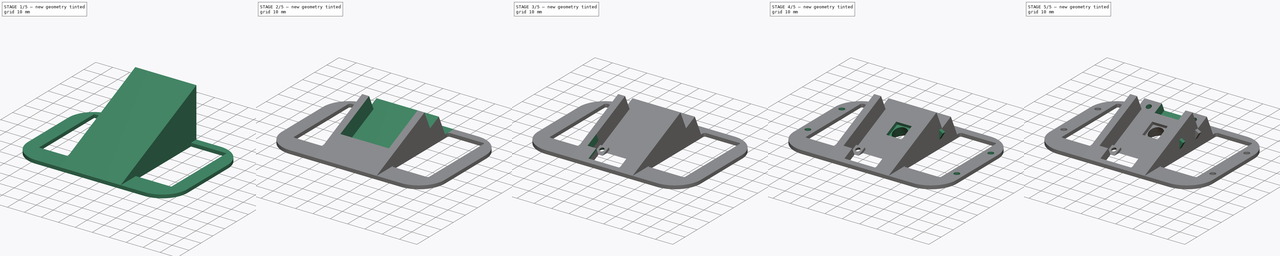
[diagram: build sequence overview — one tinted view per stage of 5, left to right]
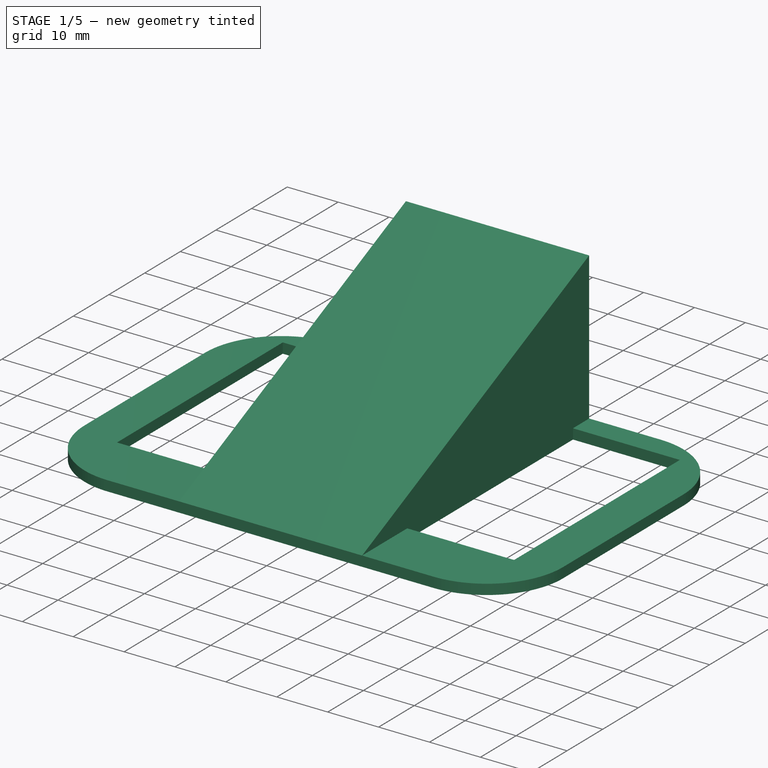
[diagram: stage 1 of 5 — iso view after this stage's code; geometry added in this stage tinted green]
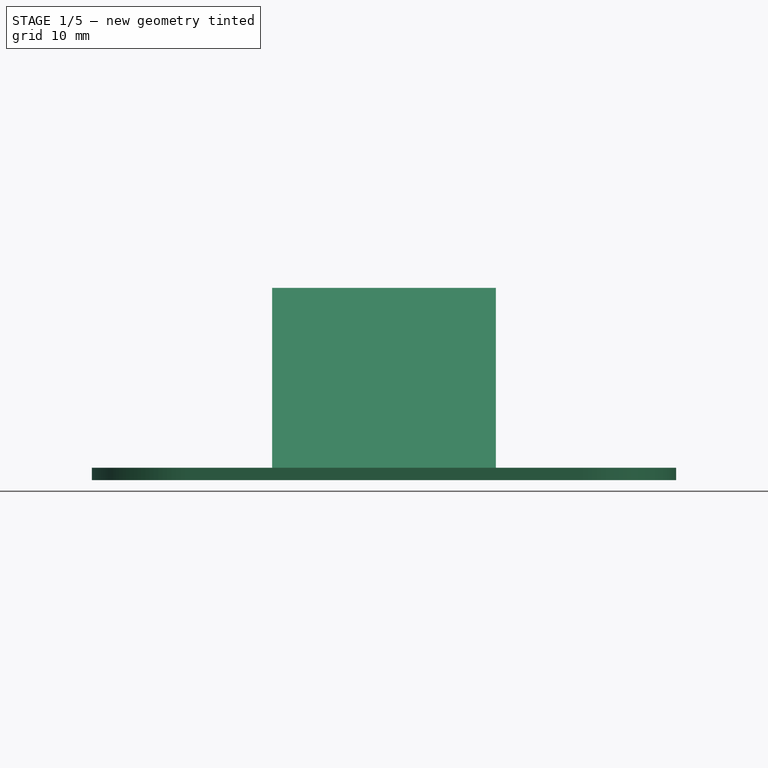
[diagram: stage 1 of 5 — front view after this stage's code; geometry added in this stage tinted green]
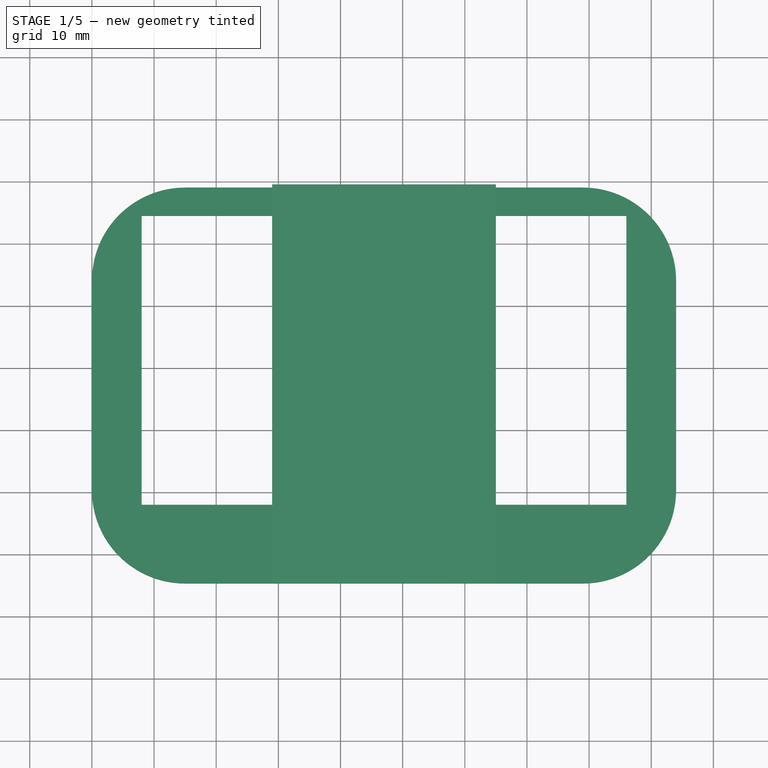
[diagram: stage 1 of 5 — top view after this stage's code; geometry added in this stage tinted green]
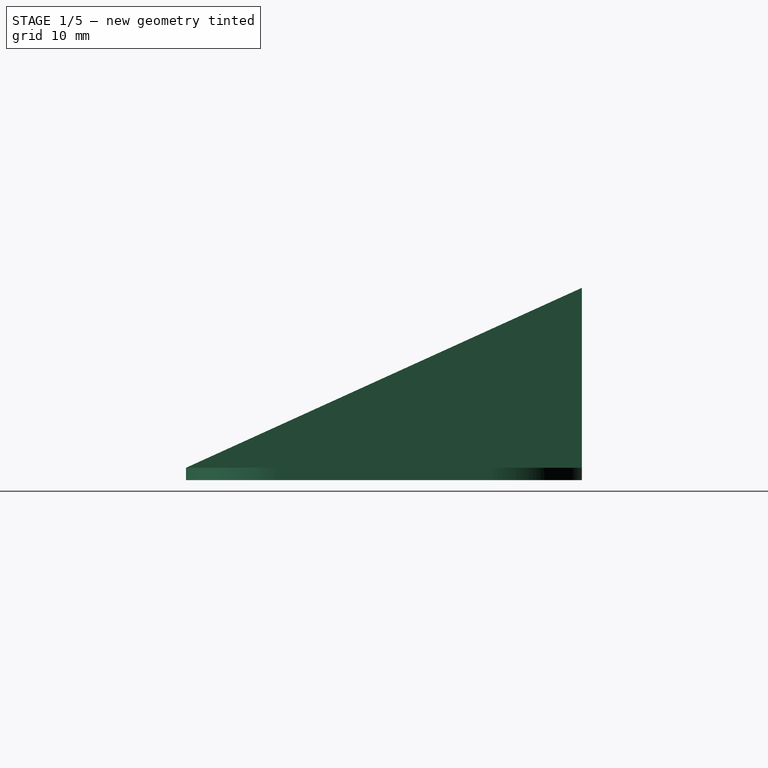
[diagram: stage 1 of 5 — right view after this stage's code; geometry added in this stage tinted green]
FCSTD DOCUMENT  (FreeCAD 0.18R4 (GitTag))
Label: cameramount_esp32_cam
License: CreativeCommons Attribution-NonCommercial
LicenseURL: http://creativecommons.org/licenses/by-nc/4.0/
objects: Sketcher::SketchObject×17, PartDesign::Pocket×10, PartDesign::Pad×4, PartDesign::SubtractiveLoft×2, PartDesign::Fillet×1, PartDesign::Body×1, App::Part×1
note: 51 computed .brp shape members not serialized (recipe doc carries the construction recipe); baked Part::Feature solids carry a one-line shape summary decoded from their .brp

FEATURE [Sketcher::SketchObject] Sketch331
  AttachmentOffset = pos=(0,0,42) rot=(0,0,1;0rad)
  MapMode = 5
  Placement = pos=(0,0,42) rot=(0,0,1;0rad)
  Support = -> [XY_Plane127]
  sketch-geometry (8):
    g0: ArcOfCircle CenterX=25 CenterY=0.35 CenterZ=0 NormalX=0 NormalY=0 NormalZ=1 AngleXU=0 Radius=15 StartAngle=3.14159 EndAngle=4.71239
    g1: LineSegment StartX=25 StartY=-14.65 StartZ=0 EndX=89 EndY=-14.65 EndZ=0
    g2: ArcOfCircle CenterX=89 CenterY=0.35 CenterZ=0 NormalX=0 NormalY=0 NormalZ=1 AngleXU=0 Radius=15 StartAngle=4.71239 EndAngle=6.28319
    g3: ArcOfCircle CenterX=25 CenterY=34.05 CenterZ=0 NormalX=0 NormalY=0 NormalZ=1 AngleXU=0 Radius=15 StartAngle=1.5708 EndAngle=3.14159
    g4: LineSegment StartX=25 StartY=49.05 StartZ=0 EndX=89 EndY=49.05 EndZ=0
    g5: LineSegment StartX=10 StartY=34.05 StartZ=0 EndX=10 EndY=0.35 EndZ=0
    g6: ArcOfCircle CenterX=89 CenterY=34.05 CenterZ=0 NormalX=0 NormalY=0 NormalZ=1 AngleXU=0 Radius=15 StartAngle=0 EndAngle=1.5708
    g7: LineSegment StartX=104 StartY=34.05 StartZ=0 EndX=104 EndY=0.35 EndZ=0
  constraints (21):
    c: Horizontal(g1)
    c: Tangent(g1,g0) = -1.5708
    c: Angle(g0) = 1.5708
    c: DistanceX(g-1,g0) = 25
    c: DistanceX(g1,g1) = 64
    c: Equal(g0,g2)
    c: DistanceY(g0,g-1) = 14.65
    c: Horizontal(g4)
    c: Vertical(g0,g3)
    c: Vertical(g4,g1)
    c: Tangent(g2,g1) = -1.5708
    c: Tangent(g4,g3) = 1.5708
    c: Vertical(g5)
    c: Coincident(g5,g0)
    c: Tangent(g5,g3) = -1.5708
    c: DistanceY(g0,g3) = 63.7
    c: Vertical(g7)
    c: Tangent(g7,g2) = 1.5708
    c: Tangent(g7,g6) = 1.5708
    c: Tangent(g6,g4) = 1.5708
    c: DistanceX(g-1,g0) = 10
FEATURE [Sketcher::SketchObject] Sketch332
  AttachmentOffset = pos=(0,0,57) rot=(0,0,1;0rad)
  MapMode = 5
  Placement = pos=(57,-1.27e-14,1.27e-14) rot=(0.57735,0.57735,0.57735;2.0944rad)
  Support = -> [YZ_Plane127]
  sketch-geometry (3):
    g0: LineSegment StartX=-14.65 StartY=44 StartZ=0 EndX=49.05 EndY=44 EndZ=0
    g1: LineSegment StartX=49.05 StartY=44 StartZ=0 EndX=49.05 EndY=72.9546 EndZ=0
    g2: LineSegment StartX=49.05 StartY=72.9546 StartZ=0 EndX=-14.65 EndY=44 EndZ=0
  constraints (9):
    c: Horizontal(g0)
    c: Coincident(g0,g1)
    c: Vertical(g1)
    c: Coincident(g1,g2)
    c: Coincident(g2,g0)
    c: Angle(g0,g2) = 0.426628
    c: DistanceY(g-1,g0) = 44
    c: DistanceX(g0,g-1) = 14.65
    c: DistanceX(g0,g0) = 63.7
FEATURE [PartDesign::Pad] Pad127  label="Base"
  Length = 2
  Length2 = 100
  Profile = -> Sketch331
  Type = 0
FEATURE [PartDesign::Pad] Pad128  label="Camerawedge"
  BaseFeature = -> Pad127
  Length = 18
  Length2 = 18
  Profile = -> Sketch332
  Type = 4
FEATURE [Sketcher::SketchObject] Sketch333
  MapMode = 5
  Placement = pos=(0,0,44) rot=(0,0,1;0rad)
  Support = -> [Pad128]
  sketch-geometry (8):
    g0: LineSegment StartX=75 StartY=-2 StartZ=0 EndX=96 EndY=-2 EndZ=0
    g1: LineSegment StartX=96 StartY=-2 StartZ=0 EndX=96 EndY=44.5 EndZ=0
    g2: LineSegment StartX=96 StartY=44.5 StartZ=0 EndX=75 EndY=44.5 EndZ=0
    g3: LineSegment StartX=75 StartY=44.5 StartZ=0 EndX=75 EndY=-2 EndZ=0
    g4: LineSegment StartX=18 StartY=-2 StartZ=0 EndX=39 EndY=-2 EndZ=0
    g5: LineSegment StartX=39 StartY=-2 StartZ=0 EndX=39 EndY=44.5 EndZ=0
    g6: LineSegment StartX=39 StartY=44.5 StartZ=0 EndX=18 EndY=44.5 EndZ=0
    g7: LineSegment StartX=18 StartY=44.5 StartZ=0 EndX=18 EndY=-2 EndZ=0
  constraints (24):
    c: Coincident(g0,g1)
    c: Coincident(g1,g2)
    c: Coincident(g2,g3)
    c: Coincident(g3,g0)
    c: Horizontal(g0)
    c: Horizontal(g2)
    c: Vertical(g1)
    c: Vertical(g3)
    c: Coincident(g4,g5)
    c: Coincident(g5,g6)
    c: Coincident(g6,g7)
    c: Coincident(g7,g4)
    c: Horizontal(g4)
    c: Horizontal(g6)
    c: Vertical(g5)
    c: Vertical(g7)
    c: DistanceX(g6,g6) = 21
    c: DistanceX(g5,g2) = 36
    c: DistanceX(g-1,g5) = 39
    c: DistanceY(g7,g7) = 46.5
    c: Horizontal(g5,g2)
    c: Equal(g1,g7)
    c: Equal(g2,g6)
    c: DistanceY(g4,g-1) = 2
FEATURE [PartDesign::Pocket] Pocket160  label="Ultrasonic Sensor Holes"
  BaseFeature = -> Pad128
  Length = 2
  Length2 = 100
  Profile = -> Sketch333
  Type = 0
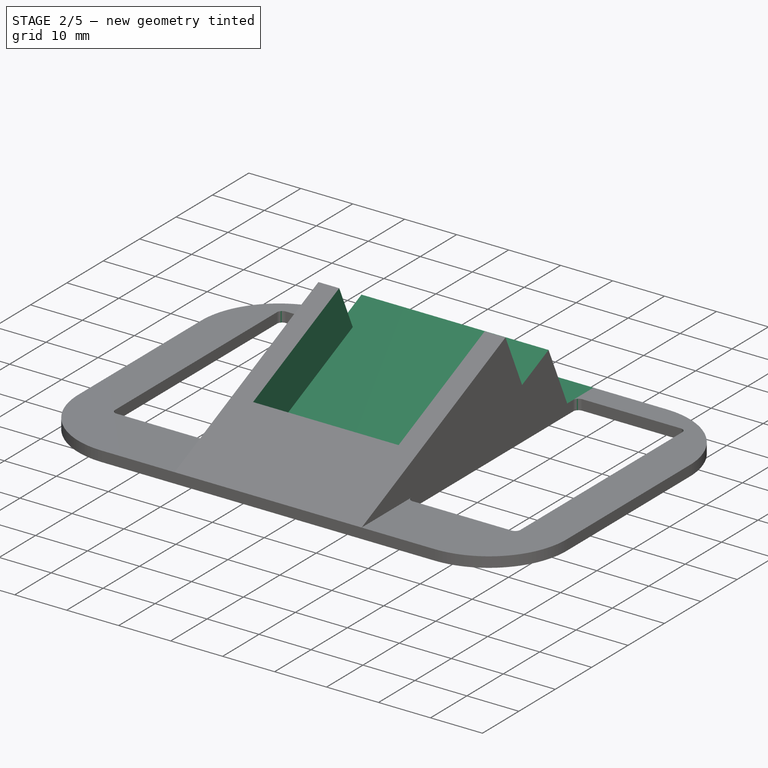
[diagram: stage 2 of 5 — iso view after this stage's code; geometry added in this stage tinted green]
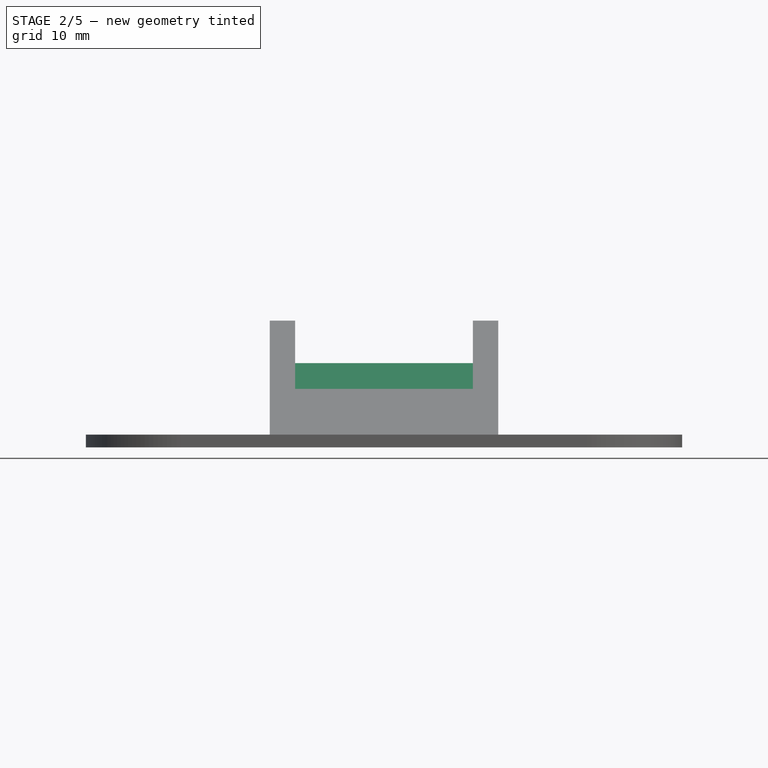
[diagram: stage 2 of 5 — front view after this stage's code; geometry added in this stage tinted green]
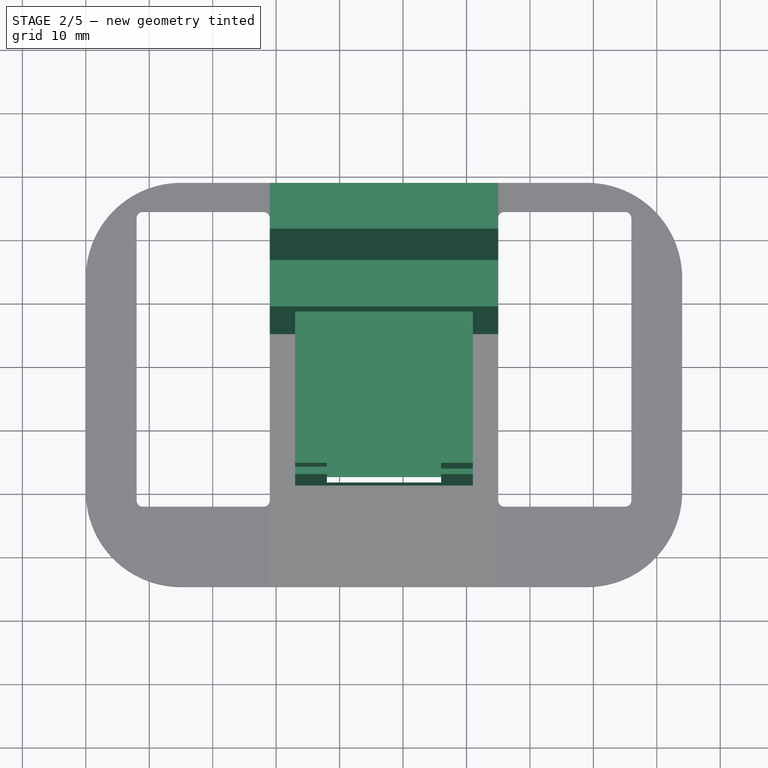
[diagram: stage 2 of 5 — top view after this stage's code; geometry added in this stage tinted green]
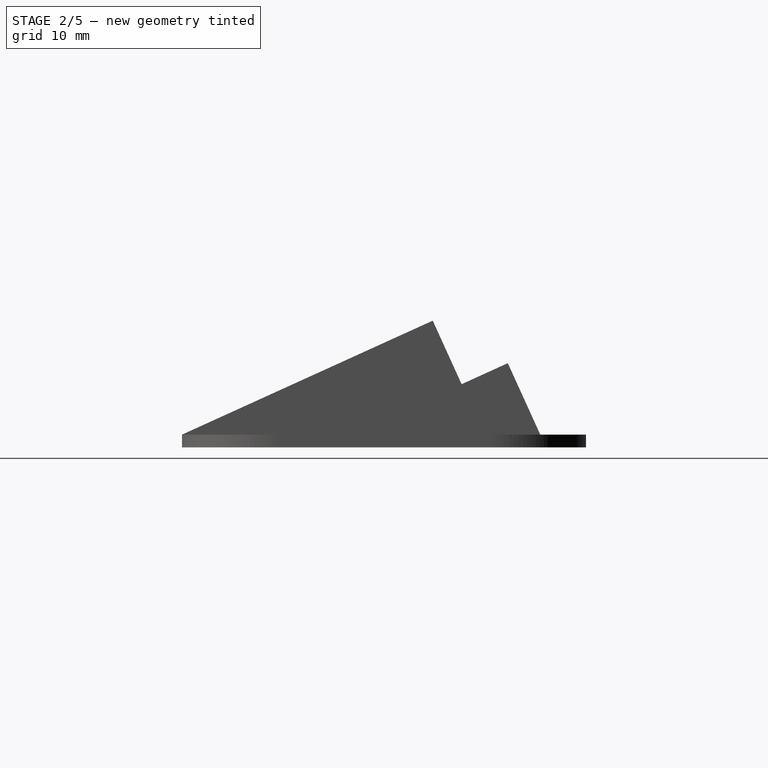
[diagram: stage 2 of 5 — right view after this stage's code; geometry added in this stage tinted green]
FEATURE [PartDesign::Fillet] Fillet052  label="Smooth Ultrasonic Sensor Holes"
  Base = -> Pocket160 [Edge58,Edge57,Edge55,Edge56,Edge50,Edge51,Edge52,Edge54]
  BaseFeature = -> Pocket160
  Radius = 1
FEATURE [Sketcher::SketchObject] Sketch334
  ExternalGeometry = -> [Fillet052]
  MapMode = 5
  Placement = pos=(75,-1.65e-14,1.87e-14) rot=(0.57735,0.57735,0.57735;2.0944rad)
  Support = -> [Fillet052]
  sketch-geometry (8):
    g0: LineSegment StartX=41.8377 StartY=44 StartZ=0 EndX=49.05 EndY=44 EndZ=0
    g1: LineSegment StartX=49.05 StartY=44 StartZ=0 EndX=49.05 EndY=72.9546 EndZ=0
    g2: LineSegment StartX=24.8822 StartY=61.9692 StartZ=0 EndX=29.434 EndY=51.9552 EndZ=0
    g3: LineSegment StartX=24.8822 StartY=61.9692 StartZ=0 EndX=49.05 EndY=72.9546 EndZ=0
    g4: LineSegment StartX=29.434 StartY=51.9552 StartZ=0 EndX=36.7169 EndY=55.2656 EndZ=0
    g5: LineSegment StartX=36.7169 StartY=55.2656 StartZ=0 EndX=41.8377 EndY=44 EndZ=0
    g6: LineSegment [constr] StartX=29.434 StartY=51.9552 StartZ=0 EndX=33.05 EndY=44 EndZ=0
    g7: LineSegment [constr] StartX=33.05 StartY=44 StartZ=0 EndX=41.8377 EndY=44 EndZ=0
  constraints (20):
    c: Horizontal(g0)
    c: Coincident(g0,g1)
    c: Coincident(g1,g-3)
    c: Coincident(g0,g-4)
    c: PointOnObject(g2,g-3)
    c: Coincident(g3,g2)
    c: Perpendicular(g3,g2)
    c: Coincident(g1,g3)
    c: DistanceX(g6,g0) = 16
    c: Coincident(g4,g5)
    c: Parallel(g5,g2)
    c: Perpendicular(g5,g4)
    c: Coincident(g2,g4)
    c: Distance(g4) = 8
    c: Distance(g2) = 11
    c: Tangent(g6,g2) = -1.5708
    c: Coincident(g0,g5)
    c: Coincident(g7,g6)
    c: Coincident(g7,g0)
    c: Horizontal(g7)
FEATURE [PartDesign::Pocket] Pocket161  label="Shorten Wedge"
  BaseFeature = -> Fillet052
  Length = 36
  Length2 = 100
  Profile = -> Sketch334
  Type = 0
FEATURE [Sketcher::SketchObject] Sketch335
  ExternalGeometry = -> [Pocket161]
  MapMode = 5
  Placement = pos=(5.3e-15,43.9661,19.9846) rot=(0,0.541385,0.840775;3.14159rad)
  Support = -> [Pocket161]
  sketch-geometry (5):
    g0: LineSegment StartX=-71 StartY=37.1183 StartZ=0 EndX=-43 EndY=37.1183 EndZ=0
    g1: LineSegment StartX=-43 StartY=37.1183 StartZ=0 EndX=-43 EndY=46.1183 EndZ=0
    g2: LineSegment StartX=-43 StartY=46.1183 StartZ=0 EndX=-71 EndY=46.1183 EndZ=0
    g3: LineSegment StartX=-71 StartY=46.1183 StartZ=0 EndX=-71 EndY=37.1183 EndZ=0
    g4: GeomPoint X=-57 Y=46.1183 Z=0
  constraints (13):
    c: Coincident(g0,g1)
    c: Coincident(g1,g2)
    c: Coincident(g2,g3)
    c: Coincident(g3,g0)
    c: Horizontal(g0)
    c: Horizontal(g2)
    c: Vertical(g1)
    c: Vertical(g3)
    c: DistanceX(g2,g2) = 28
    c: DistanceY(g1,g1) = 9
    c: Symmetric(g2,g1,g4)
    c: Horizontal(g2,g-3)
    c: DistanceX(g4,g-1) = 57
FEATURE [PartDesign::Pocket] Pocket162  label="ESP32-CAM PCB Pocket"
  BaseFeature = -> Pocket161
  Length = 26
  Length2 = 100
  Profile = -> Sketch335
  Type = 0
FEATURE [Sketcher::SketchObject] Sketch336
  ExternalGeometry = -> [Pocket162]
  MapMode = 5
  Placement = pos=(2.7e-15,20.2966,9.22574) rot=(0,0.541385,0.840775;3.14159rad)
  Support = -> [Pocket162]
  sketch-geometry (12):
    g0: LineSegment StartX=-71 StartY=41.6183 StartZ=0 EndX=-71 EndY=39.4183 EndZ=0
    g1: LineSegment StartX=-71 StartY=39.4183 StartZ=0 EndX=-66 EndY=39.4183 EndZ=0
    g2: LineSegment StartX=-66 StartY=39.4183 StartZ=0 EndX=-66 EndY=37.1183 EndZ=0
    g3: LineSegment StartX=-66 StartY=37.1183 StartZ=0 EndX=-48 EndY=37.1183 EndZ=0
    g4: LineSegment StartX=-48 StartY=37.1183 StartZ=0 EndX=-48 EndY=38.6183 EndZ=0
    g5: LineSegment StartX=-48 StartY=38.6183 StartZ=0 EndX=-43 EndY=38.6183 EndZ=0
    g6: LineSegment StartX=-43 StartY=38.6183 StartZ=0 EndX=-43 EndY=41.6183 EndZ=0
    g7: LineSegment StartX=-43 StartY=41.6183 StartZ=0 EndX=-48 EndY=41.6183 EndZ=0
    g8: LineSegment StartX=-48 StartY=41.6183 StartZ=0 EndX=-48 EndY=44.9183 EndZ=0
    g9: LineSegment StartX=-48 StartY=44.9183 StartZ=0 EndX=-66 EndY=44.9183 EndZ=0
    g10: LineSegment StartX=-66 StartY=44.9183 StartZ=0 EndX=-66 EndY=41.6183 EndZ=0
    g11: LineSegment StartX=-66 StartY=41.6183 StartZ=0 EndX=-71 EndY=41.6183 EndZ=0
  constraints (33):
    c: Vertical(g0)
    c: Coincident(g0,g1)
    c: Horizontal(g1)
    c: Coincident(g1,g2)
    c: Vertical(g2)
    c: Coincident(g2,g3)
    c: Horizontal(g3)
    c: Coincident(g3,g4)
    c: Vertical(g4)
    c: Coincident(g4,g5)
    c: Horizontal(g5)
    c: Coincident(g5,g6)
    c: Vertical(g6)
    c: Coincident(g6,g7)
    c: Horizontal(g7)
    c: Coincident(g7,g8)
    c: Vertical(g8)
    c: Coincident(g8,g9)
    c: Horizontal(g9)
    c: Coincident(g9,g10)
    c: Vertical(g10)
    c: Coincident(g10,g11)
    c: Coincident(g11,g0)
    c: Horizontal(g11)
    c: Vertical(g1,g10)
    c: Horizontal(g7,g10)
    c: Equal(g11,g7)
    c: Equal(g5,g1)
    c: DistanceY(g4,g4) = 1.5
    c: DistanceY(g6,g6) = 3
    c: DistanceY(g2,g2) = 2.3
    c: DistanceX(g3,g3) = 18
    c: DistanceY(g8,g8) = 3.3
FEATURE [PartDesign::Pocket] Pocket163  label="ESP32-CAM PCB Pocket longer"
  BaseFeature = -> Pocket162
  Length = 15
  Length2 = 100
  Profile = -> Sketch336
  Type = 0
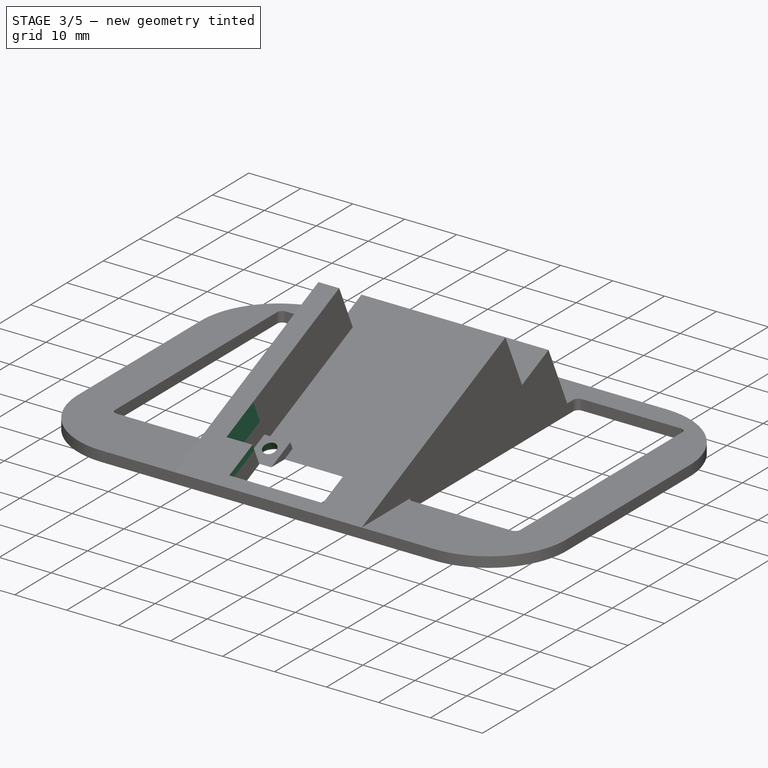
[diagram: stage 3 of 5 — iso view after this stage's code; geometry added in this stage tinted green]
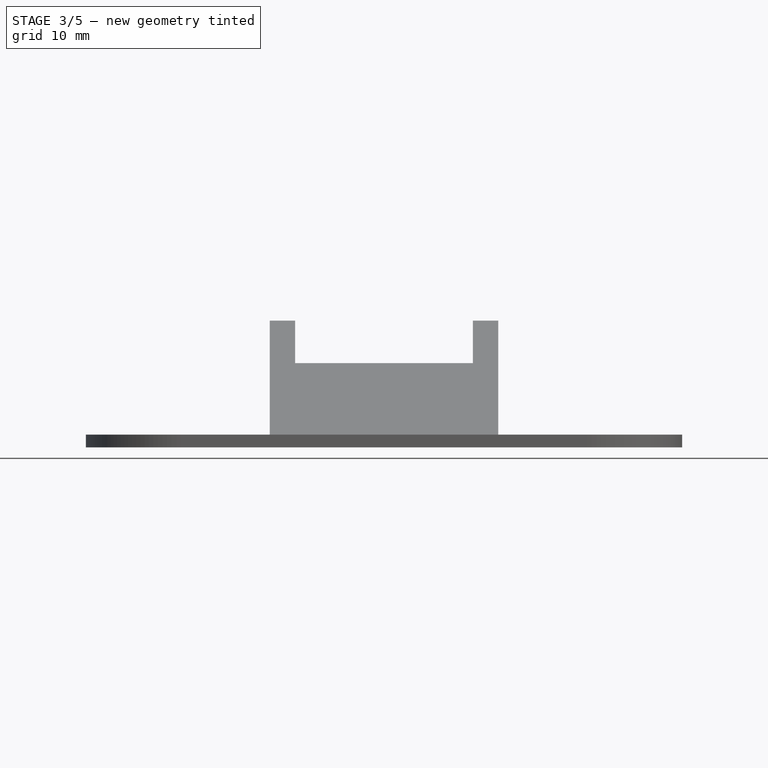
[diagram: stage 3 of 5 — front view after this stage's code; geometry added in this stage tinted green]
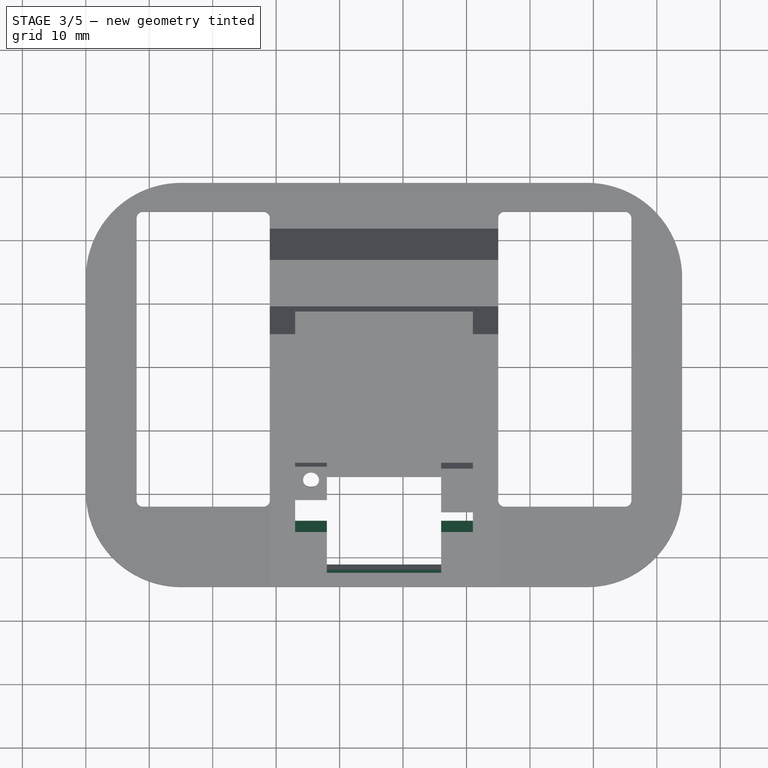
[diagram: stage 3 of 5 — top view after this stage's code; geometry added in this stage tinted green]
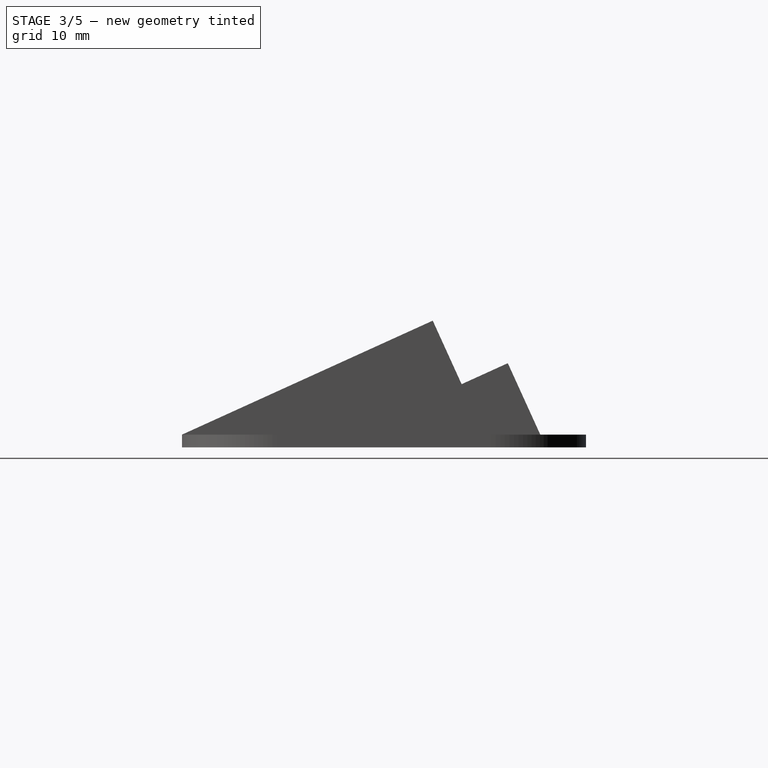
[diagram: stage 3 of 5 — right view after this stage's code; geometry added in this stage tinted green]
FEATURE [PartDesign::Pocket] Pocket164  label="ESP32-CAM SoC Pocket"
  BaseFeature = -> Pocket163
  Length = 8
  Length2 = 100
  Profile = -> Pocket163 [Face47]
  Type = 0
FEATURE [PartDesign::Pocket] Pocket165  label="ESP32-CAM Antenna Pocket"
  BaseFeature = -> Pocket164
  Length = 5
  Length2 = 100
  Profile = -> Pocket164 [Face50]
  Type = 0
FEATURE [Sketcher::SketchObject] Sketch337
  MapMode = 5
  Placement = pos=(0,-15.9804,35.1568) rot=(1,0,0;0.426628rad)
  Support = -> [Pocket165]
  sketch-geometry (1):
    g0: Circle CenterX=45.5 CenterY=20 CenterZ=0 NormalX=0 NormalY=0 NormalZ=1 AngleXU=0 Radius=1.25
  constraints (3):
    c: Radius(g0) = 1.25
    c: DistanceX(g-1,g0) = 45.5
    c: DistanceY(g-1,g0) = 20
FEATURE [Sketcher::SketchObject] Sketch338
  AttachmentOffset = pos=(0,0,-10.6) rot=(0,0,1;0rad)
  MapMode = 5
  Placement = pos=(0,-11.5941,25.5069) rot=(1,0,0;0.426628rad)
  Support = -> [Pocket165]
  sketch-geometry (1):
    g0: Circle CenterX=45.5 CenterY=20 CenterZ=0 NormalX=0 NormalY=0 NormalZ=1 AngleXU=0 Radius=5
  constraints (3):
    c: DistanceX(g-1,g0) = 45.5
    c: DistanceY(g-1,g0) = 20
    c: Radius(g0) = 5
FEATURE [PartDesign::SubtractiveLoft] SubtractiveLoft002  label="Flashlight Loft"
  BaseFeature = -> Pocket165
  Closed = false
  Profile = -> Sketch338
  Ruled = false
  Sections = -> [Sketch337]
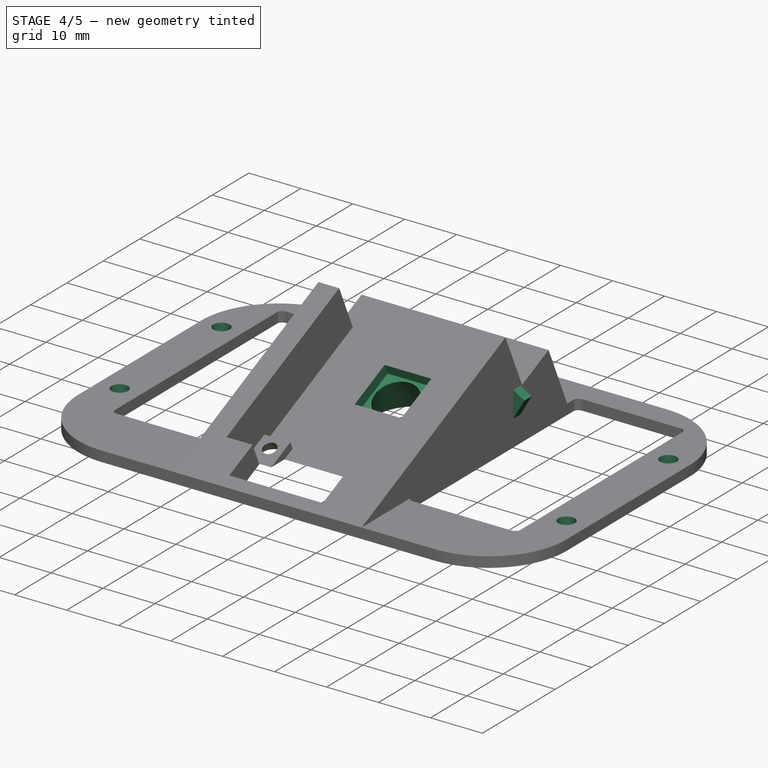
[diagram: stage 4 of 5 — iso view after this stage's code; geometry added in this stage tinted green]
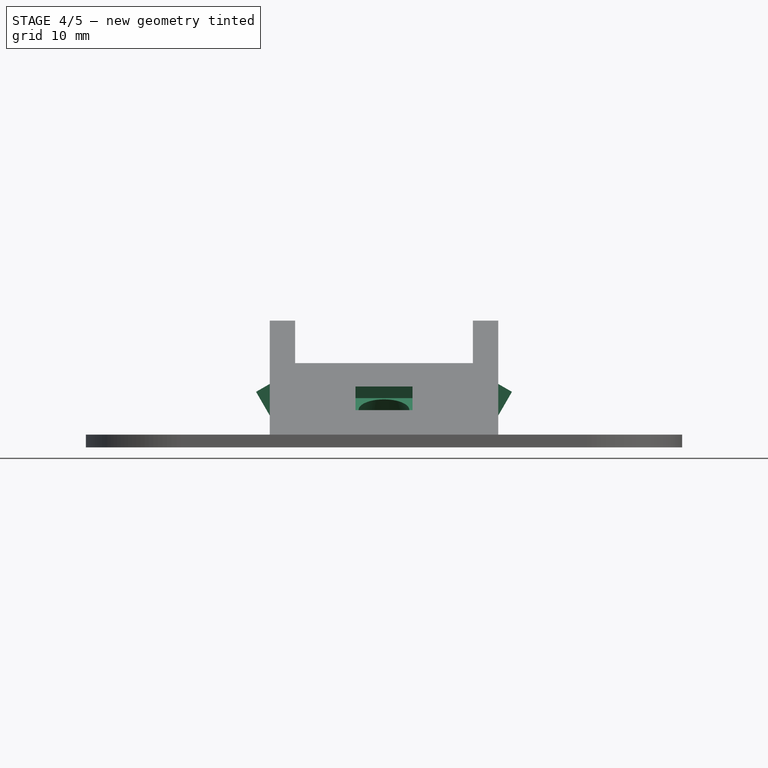
[diagram: stage 4 of 5 — front view after this stage's code; geometry added in this stage tinted green]
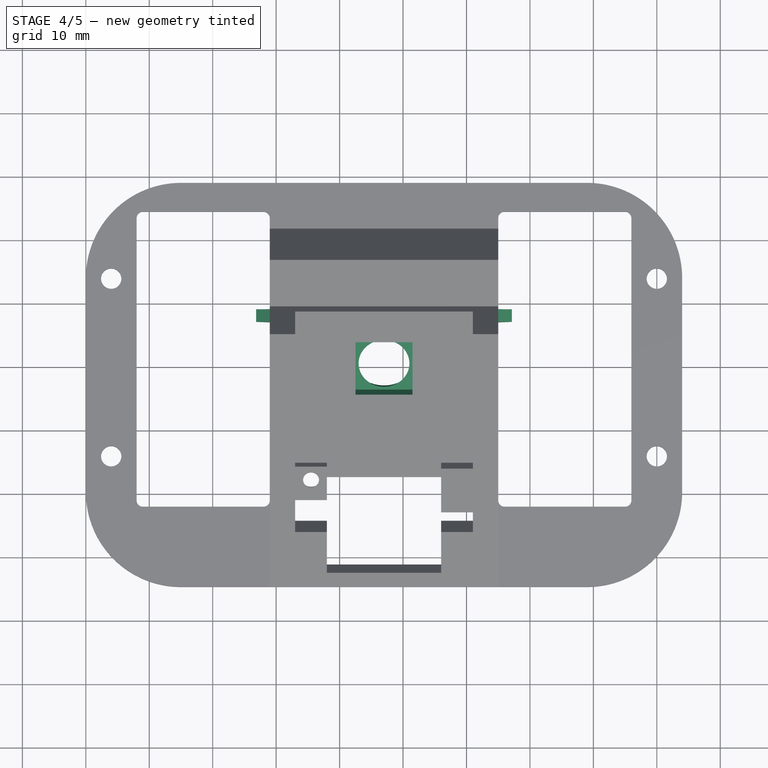
[diagram: stage 4 of 5 — top view after this stage's code; geometry added in this stage tinted green]
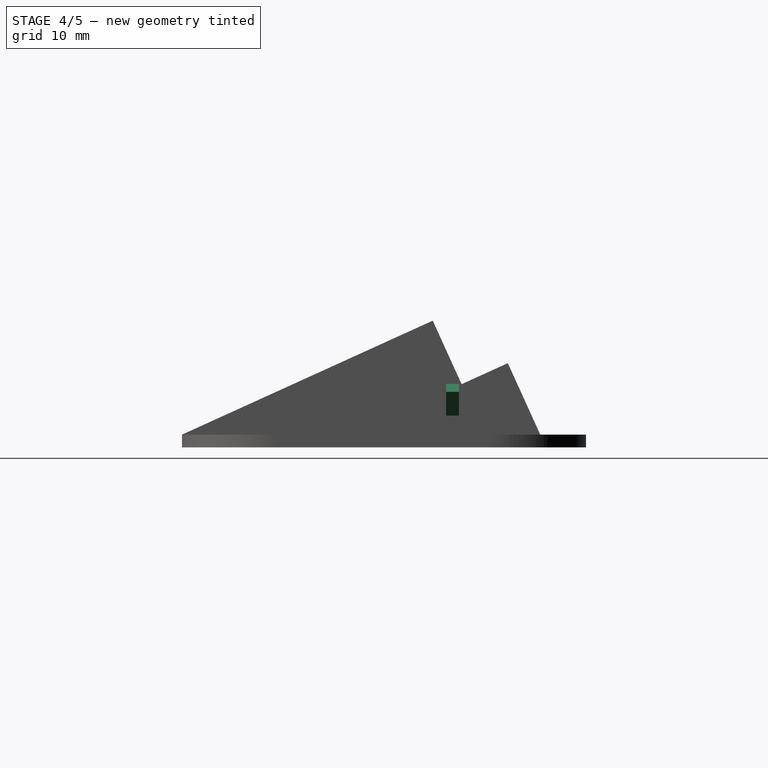
[diagram: stage 4 of 5 — right view after this stage's code; geometry added in this stage tinted green]
FEATURE [Sketcher::SketchObject] Sketch339
  MapMode = 5
  Placement = pos=(0,-15.3597,33.7913) rot=(1,0,0;0.426628rad)
  Support = -> [SubtractiveLoft002]
  sketch-geometry (5):
    g0: LineSegment StartX=52.5 StartY=43 StartZ=0 EndX=61.5 EndY=43 EndZ=0
    g1: LineSegment StartX=61.5 StartY=43 StartZ=0 EndX=61.5 EndY=34 EndZ=0
    g2: LineSegment StartX=61.5 StartY=34 StartZ=0 EndX=52.5 EndY=34 EndZ=0
    g3: LineSegment StartX=52.5 StartY=34 StartZ=0 EndX=52.5 EndY=43 EndZ=0
    g4: Circle [constr] CenterX=57 CenterY=38.5 CenterZ=0 NormalX=0 NormalY=0 NormalZ=1 AngleXU=0 Radius=6.36396
  constraints (15):
    c: Coincident(g0,g1)
    c: Coincident(g1,g2)
    c: Coincident(g2,g3)
    c: Coincident(g3,g0)
    c: Horizontal(g0)
    c: Horizontal(g2)
    c: Vertical(g1)
    c: Vertical(g3)
    c: Equal(g3,g0)
    c: DistanceX(g0,g0) = 9
    c: PointOnObject(g0,g4)
    c: PointOnObject(g2,g4)
    c: PointOnObject(g0,g4)
    c: DistanceX(g-1,g4) = 57
    c: DistanceY(g-1,g4) = 38.5
FEATURE [PartDesign::Pocket] Pocket166  label="Camerasensor Pocket"
  BaseFeature = -> SubtractiveLoft002
  Length = 2
  Length2 = 100
  Profile = -> Sketch339
  Type = 0
FEATURE [Sketcher::SketchObject] Sketch341
  AttachmentOffset = pos=(0,0,-21.1) rot=(0,0,1;0rad)
  MapMode = 5
  Placement = pos=(3e-16,-5.80084,12.7618) rot=(1,0,0;0.426628rad)
  Support = -> [Pocket166]
  sketch-geometry (1):
    g0: Circle CenterX=57 CenterY=38.5 CenterZ=0 NormalX=0 NormalY=0 NormalZ=1 AngleXU=0 Radius=12
  constraints (3):
    c: Radius(g0) = 12
    c: DistanceX(g-1,g0) = 57
    c: DistanceY(g-1,g0) = 38.5
FEATURE [Sketcher::SketchObject] Sketch340
  MapMode = 5
  Placement = pos=(7e-16,-14.5321,31.9705) rot=(1,0,0;0.426628rad)
  Support = -> [Pocket166]
  sketch-geometry (1):
    g0: Circle CenterX=57 CenterY=38.5 CenterZ=0 NormalX=0 NormalY=0 NormalZ=1 AngleXU=0 Radius=4
  constraints (3):
    c: Radius(g0) = 4
    c: DistanceX(g-1,g0) = 57
    c: DistanceY(g-1,g0) = 38.5
FEATURE [PartDesign::SubtractiveLoft] SubtractiveLoft003  label="Camerasensor Loft"
  BaseFeature = -> Pocket166
  Closed = false
  Profile = -> Sketch341
  Ruled = false
  Sections = -> [Sketch340]
FEATURE [Sketcher::SketchObject] Sketch343  label="FOV"
  AttachmentOffset = pos=(0,0,-18) rot=(0,0,1;0rad)
  MapMode = 5
  Placement = pos=(57,-1.26e-14,1.37e-14) rot=(-0.57735,0.57735,0.57735;4.18879rad)
  Support = -> [SubtractiveLoft003]
  sketch-geometry (5):
    g0: ArcOfCircle CenterX=-24 CenterY=46 CenterZ=0 NormalX=0 NormalY=0 NormalZ=1 AngleXU=0 Radius=322.897 StartAngle=3.7186 EndAngle=4.85306
    g1: LineSegment StartX=-24 StartY=46 StartZ=0 EndX=-294.62 EndY=-130.146 EndZ=0
    g2: LineSegment StartX=21.2734 StartY=-273.707 StartZ=0 EndX=-24 EndY=46 EndZ=0
    g3: LineSegment [constr] StartX=-50.775 StartY=28.5722 StartZ=0 EndX=-19.5207 EndY=14.3683 EndZ=0
    g4: LineSegment [constr] StartX=-35.1478 StartY=21.4702 StartZ=0 EndX=-24 EndY=46 EndZ=0
  constraints (13):
    c: Coincident(g1,g0)
    c: Coincident(g1,g0)
    c: Coincident(g2,g0)
    c: Coincident(g2,g0)
    c: Angle(g1,g2) = 1.13446
    c: PointOnObject(g3,g2)
    c: PointOnObject(g3,g1)
    c: Coincident(g4,g0)
    c: Perpendicular(g3,g4)
    c: Symmetric(g3,g3,g4)
    c: Angle(g4) = 1.14424
    c: DistanceX(g0,g-1) = 24
    c: DistanceY(g-1,g0) = 46
FEATURE [Sketcher::SketchObject] Sketch
  MapMode = 5
  Placement = pos=(0,0,44) rot=(0,0,1;0rad)
  Support = -> [SubtractiveLoft003]
  sketch-geometry (4):
    g0: Circle CenterX=14 CenterY=33.95 CenterZ=0 NormalX=0 NormalY=0 NormalZ=1 AngleXU=0 Radius=1.6
    g1: Circle CenterX=100 CenterY=33.95 CenterZ=0 NormalX=0 NormalY=0 NormalZ=1 AngleXU=0 Radius=1.6
    g2: Circle CenterX=100 CenterY=5.95 CenterZ=0 NormalX=0 NormalY=0 NormalZ=1 AngleXU=0 Radius=1.6
    g3: Circle CenterX=14 CenterY=5.95 CenterZ=0 NormalX=0 NormalY=0 NormalZ=1 AngleXU=0 Radius=1.6
  constraints (12):
    c: Horizontal(g0,g1)
    c: Horizontal(g3,g2)
    c: Vertical(g3,g0)
    c: Vertical(g2,g1)
    c: DistanceX(g0,g1) = 86
    c: DistanceY(g2,g1) = 28
    c: Equal(g0,g1)
    c: Equal(g1,g2)
    c: Equal(g2,g3)
    c: Radius(g1) = 1.6
    c: DistanceX(g-1,g3) = 14
    c: DistanceY(g-1,g3) = 5.95
FEATURE [PartDesign::Pocket] Pocket  label="Mounting Screwholes"
  BaseFeature = -> SubtractiveLoft003
  Length = 5
  Length2 = 100
  Profile = -> Sketch
  Type = 0
FEATURE [Sketcher::SketchObject] Sketch344
  AttachmentOffset = pos=(0,0,-29) rot=(0,0,1;0rad)
  MapMode = 5
  Placement = pos=(0,29,6.4e-15) rot=(1,0,0;1.5708rad)
  Support = -> [XZ_Plane127]
  sketch-geometry (6):
    g0: LineSegment StartX=39 StartY=47 StartZ=0 EndX=39 EndY=52 EndZ=0
    g1: LineSegment StartX=39 StartY=52 StartZ=0 EndX=36.8349 EndY=50.75 EndZ=0
    g2: LineSegment StartX=36.8349 StartY=50.75 StartZ=0 EndX=39 EndY=47 EndZ=0
    g3: LineSegment StartX=75 StartY=52 StartZ=0 EndX=75 EndY=47 EndZ=0
    g4: LineSegment StartX=75 StartY=47 StartZ=0 EndX=77.1651 EndY=50.75 EndZ=0
    g5: LineSegment StartX=77.1651 StartY=50.75 StartZ=0 EndX=75 EndY=52 EndZ=0
  constraints (18):
    c: Vertical(g0)
    c: Coincident(g0,g1)
    c: Coincident(g1,g2)
    c: Coincident(g2,g0)
    c: Vertical(g3)
    c: Coincident(g3,g4)
    c: Coincident(g4,g5)
    c: Coincident(g5,g3)
    c: Horizontal(g0,g3)
    c: Equal(g0,g3)
    c: Equal(g5,g1)
    c: Equal(g2,g4)
    c: DistanceX(g0,g3) = 36
    c: DistanceY(g-1,g0) = 47
    c: DistanceX(g-1,g0) = 39
    c: DistanceY(g3,g3) = 5
    c: Angle(g3,g5) = 1.0472
    c: Perpendicular(g4,g5)
FEATURE [PartDesign::Pad] Pad  label="Ultrasonic Sensor Restrain #1"
  BaseFeature = -> Pocket
  Length = 2
  Length2 = 100
  Profile = -> Sketch344
  Type = 0
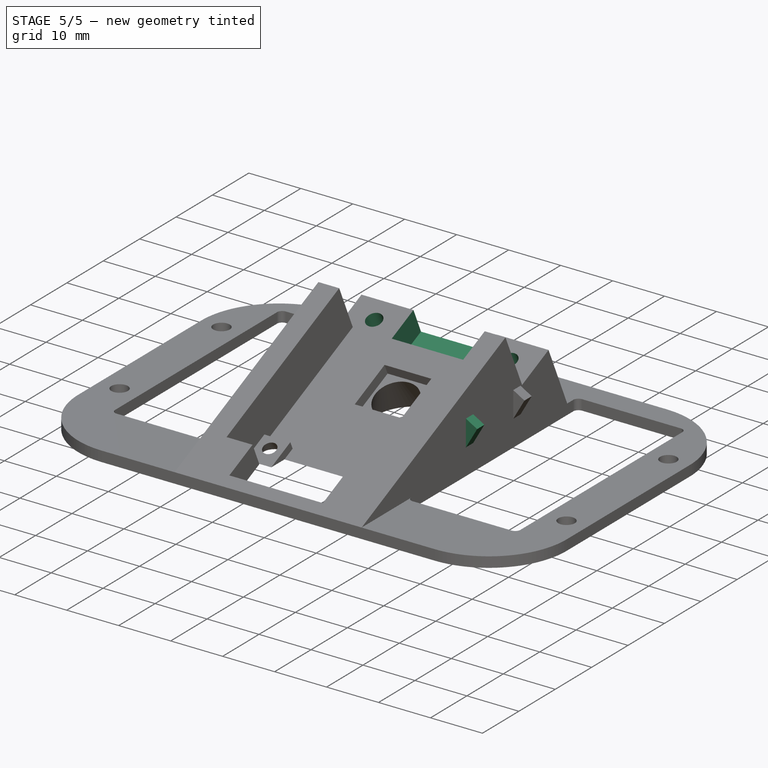
[diagram: stage 5 of 5 — iso view after this stage's code; geometry added in this stage tinted green]
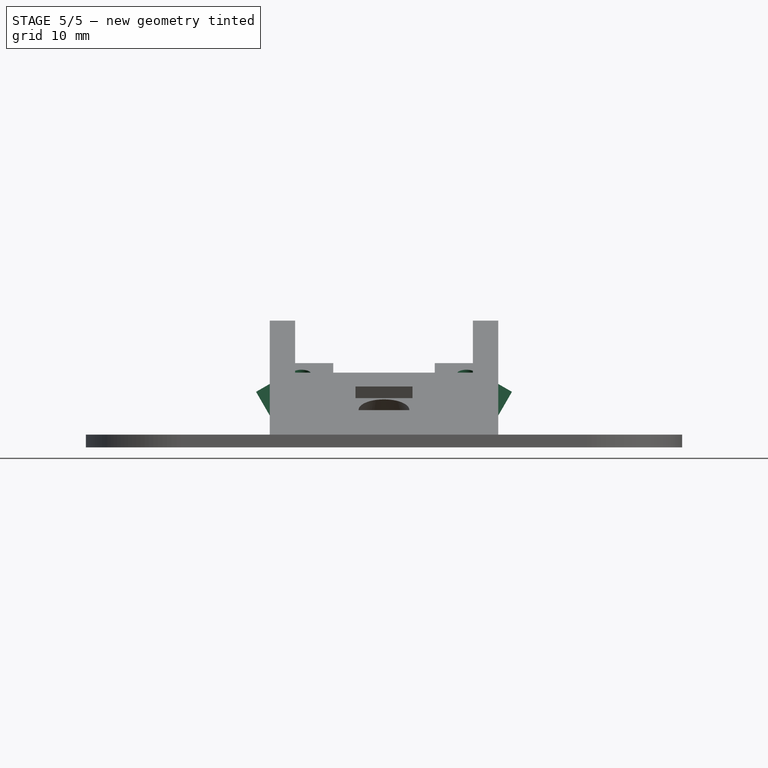
[diagram: stage 5 of 5 — front view after this stage's code; geometry added in this stage tinted green]
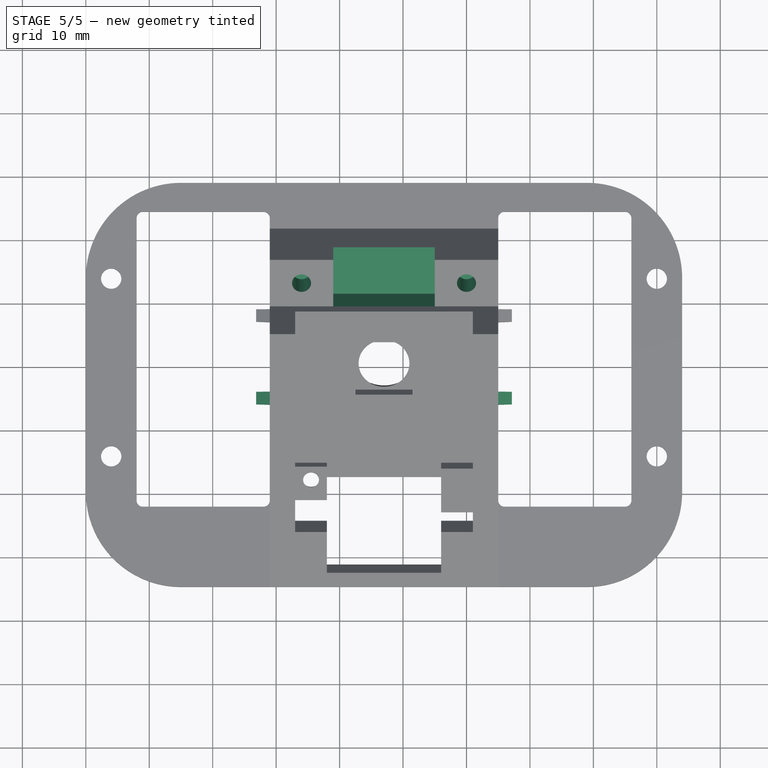
[diagram: stage 5 of 5 — top view after this stage's code; geometry added in this stage tinted green]
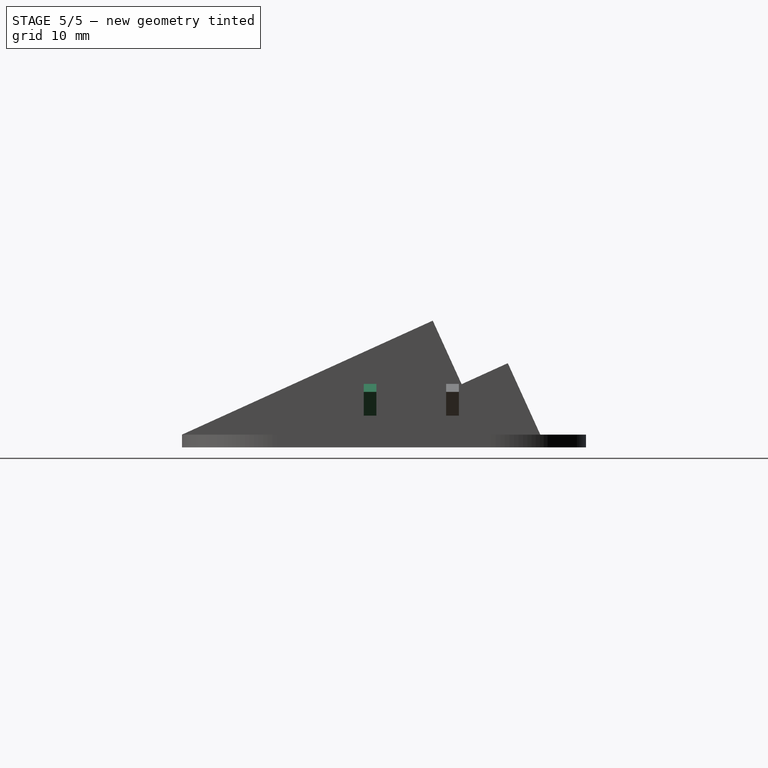
[diagram: stage 5 of 5 — right view after this stage's code; geometry added in this stage tinted green]
FEATURE [Sketcher::SketchObject] Sketch345
  AttachmentOffset = pos=(0,0,-16) rot=(0,0,1;0rad)
  MapMode = 5
  Placement = pos=(0,16,3.6e-15) rot=(1,0,0;1.5708rad)
  Support = -> [XZ_Plane127]
  sketch-geometry (6):
    g0: LineSegment StartX=39 StartY=47 StartZ=0 EndX=39 EndY=52 EndZ=0
    g1: LineSegment StartX=39 StartY=52 StartZ=0 EndX=36.8349 EndY=50.75 EndZ=0
    g2: LineSegment StartX=36.8349 StartY=50.75 StartZ=0 EndX=39 EndY=47 EndZ=0
    g3: LineSegment StartX=75 StartY=52 StartZ=0 EndX=75 EndY=47 EndZ=0
    g4: LineSegment StartX=75 StartY=47 StartZ=0 EndX=77.1651 EndY=50.75 EndZ=0
    g5: LineSegment StartX=77.1651 StartY=50.75 StartZ=0 EndX=75 EndY=52 EndZ=0
  constraints (18):
    c: Vertical(g0)
    c: Coincident(g0,g1)
    c: Coincident(g1,g2)
    c: Coincident(g2,g0)
    c: Vertical(g3)
    c: Coincident(g3,g4)
    c: Coincident(g4,g5)
    c: Coincident(g5,g3)
    c: Horizontal(g0,g3)
    c: Equal(g0,g3)
    c: Equal(g5,g1)
    c: Equal(g2,g4)
    c: DistanceX(g0,g3) = 36
    c: DistanceY(g-1,g0) = 47
    c: DistanceX(g-1,g0) = 39
    c: DistanceY(g3,g3) = 5
    c: Angle(g3,g5) = 1.0472
    c: Perpendicular(g4,g5)
FEATURE [PartDesign::Pad] Pad129  label="Ultrasonic Sensor Restrain #2"
  BaseFeature = -> Pad
  Length = 2
  Length2 = 100
  Profile = -> Sketch345
  Type = 0
FEATURE [Sketcher::SketchObject] Sketch346
  ExternalGeometry = -> [Pad129]
  MapMode = 5
  Placement = pos=(-1.02e-14,-14.5321,31.9705) rot=(1,0,0;0.426628rad)
  Support = -> [Pad129]
  sketch-geometry (3):
    g0: Circle CenterX=44 CenterY=52.295 CenterZ=0 NormalX=0 NormalY=0 NormalZ=1 AngleXU=0 Radius=1.5
    g1: Circle CenterX=70 CenterY=52.295 CenterZ=0 NormalX=0 NormalY=0 NormalZ=1 AngleXU=0 Radius=1.5
    g2: GeomPoint X=57 Y=52.295 Z=0
  constraints (7):
    c: Horizontal(g0,g1)
    c: Equal(g0,g1)
    c: Radius(g1) = 1.5
    c: Symmetric(g0,g1,g2)
    c: DistanceX(g0,g1) = 26
    c: DistanceX(g-1,g2) = 57
    c: DistanceY(g0,g-3) = 4
FEATURE [PartDesign::Pocket] Pocket167  label="Counterpiece Screwholes"
  BaseFeature = -> Pad129
  Length = 5
  Length2 = 100
  Profile = -> Sketch346
  Type = 0
FEATURE [Sketcher::SketchObject] Sketch349
  ExternalGeometry = -> [Pocket167]
  MapMode = 5
  Placement = pos=(-1.02e-14,-14.5321,31.9705) rot=(1,0,0;0.426628rad)
  Support = -> [Pocket167]
  sketch-geometry (4):
    g0: LineSegment StartX=49 StartY=56.295 StartZ=0 EndX=65 EndY=56.295 EndZ=0
    g1: LineSegment StartX=65 StartY=56.295 StartZ=0 EndX=65 EndY=48.295 EndZ=0
    g2: LineSegment StartX=65 StartY=48.295 StartZ=0 EndX=49 EndY=48.295 EndZ=0
    g3: LineSegment StartX=49 StartY=48.295 StartZ=0 EndX=49 EndY=56.295 EndZ=0
  constraints (12):
    c: Coincident(g0,g1)
    c: Coincident(g1,g2)
    c: Coincident(g2,g3)
    c: Coincident(g3,g0)
    c: Horizontal(g0)
    c: Horizontal(g2)
    c: Vertical(g1)
    c: Vertical(g3)
    c: Horizontal(g0,g-3)
    c: DistanceX(g0,g0) = 16
    c: DistanceX(g-3,g0) = 10
    c: Horizontal(g2,g-4)
FEATURE [PartDesign::Pocket] Pocket169  label="Counterpiece Fixation"
  BaseFeature = -> Pocket167
  Length = 5
  Length2 = 100
  Profile = -> Sketch349
  Type = 0
FEATURE [PartDesign::Body] Body088  label="Cameramount_ESP32_CAM_Body"
  Group = -> [Sketch331,Pad127,Sketch332,Pad128,Sketch333,Pocket160,Fillet052,Sketch334,Pocket161,Sketch335,Pocket162,Sketch336,Pocket163,Pocket164,Pocket165,Sketch337,Sketch338,SubtractiveLoft002,Sketch339,Pocket166,Sketch340,Sketch341,SubtractiveLoft003,Sketch343,Sketch,Pocket,Sketch344,Pad,Sketch345,Pad129,Sketch346,Pocket167,Sketch349,Pocket169]
  Origin = -> Origin128
  Placement = pos=(0,-14.45,31.85) rot=(0,0,1;0rad)
  Tip = -> Pocket169
FEATURE [App::Part] Part  label="Cameramount_ESP32_CAM"
  Group = -> [Body088]
  Origin = -> Origin
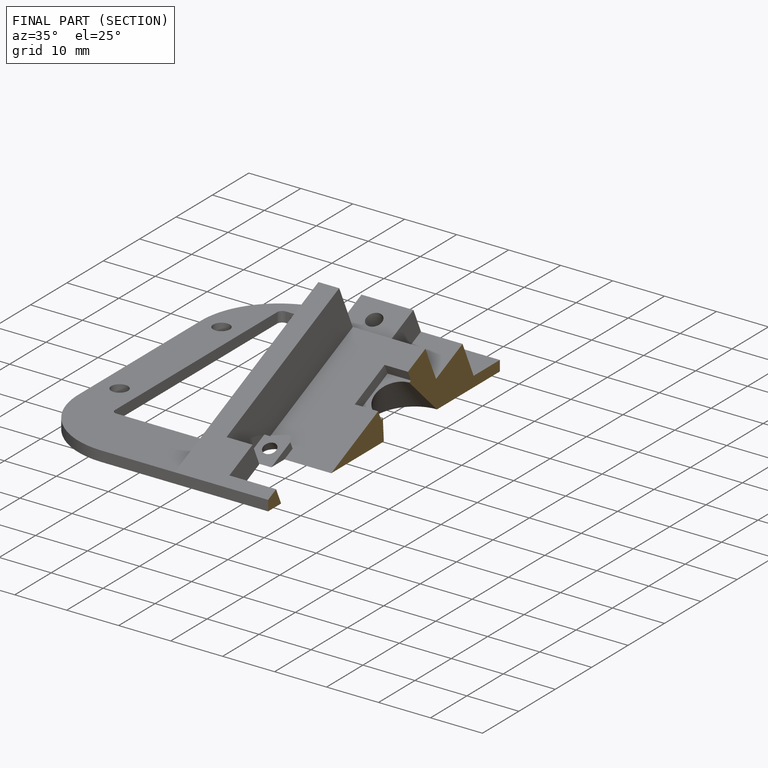
[diagram: finished part — half-section view (interior)]
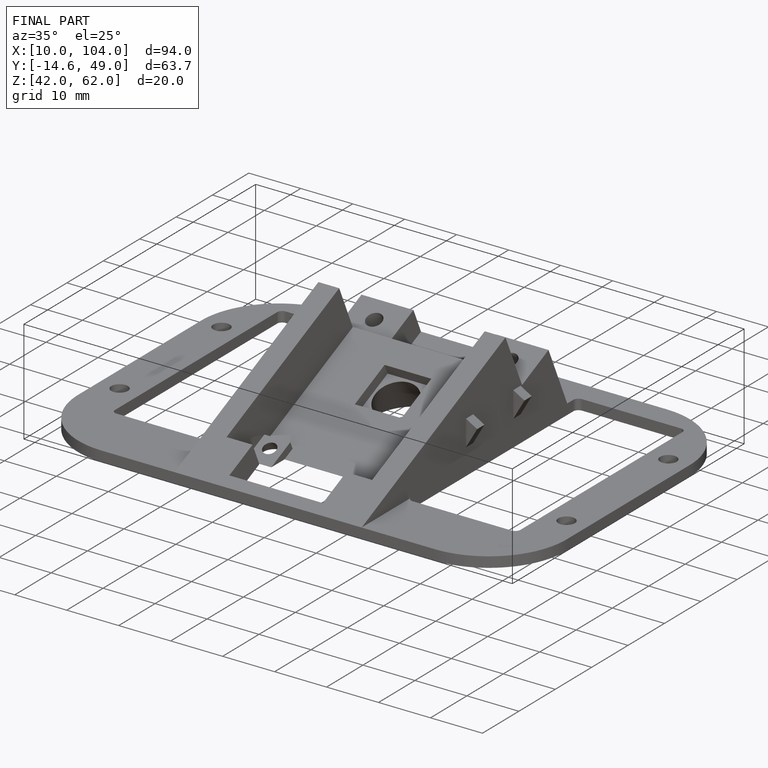
[diagram: finished part — iso view with bounding-box wireframe]
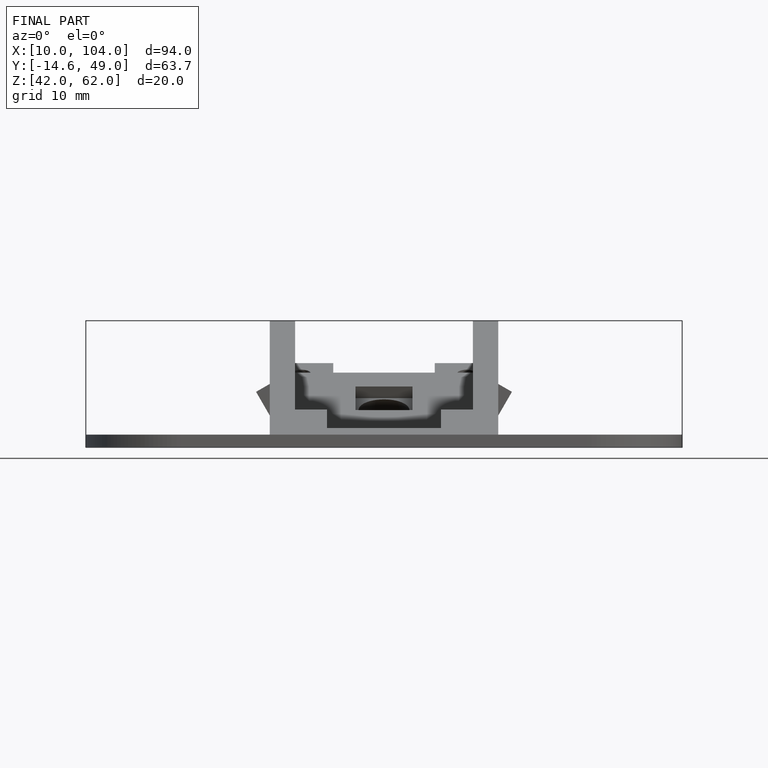
[diagram: finished part — front view with bounding-box wireframe]
